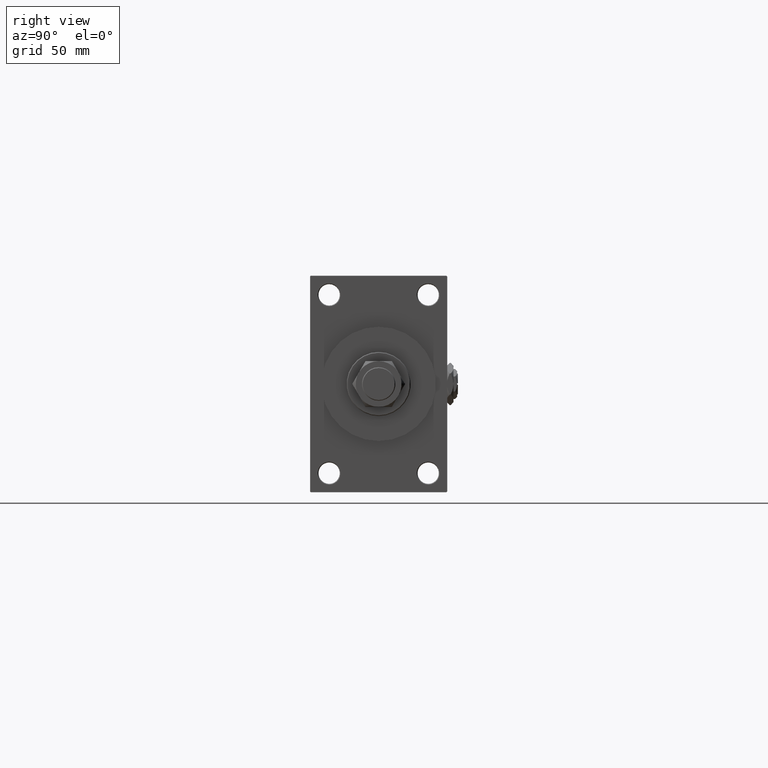
[diagram: clean part render]
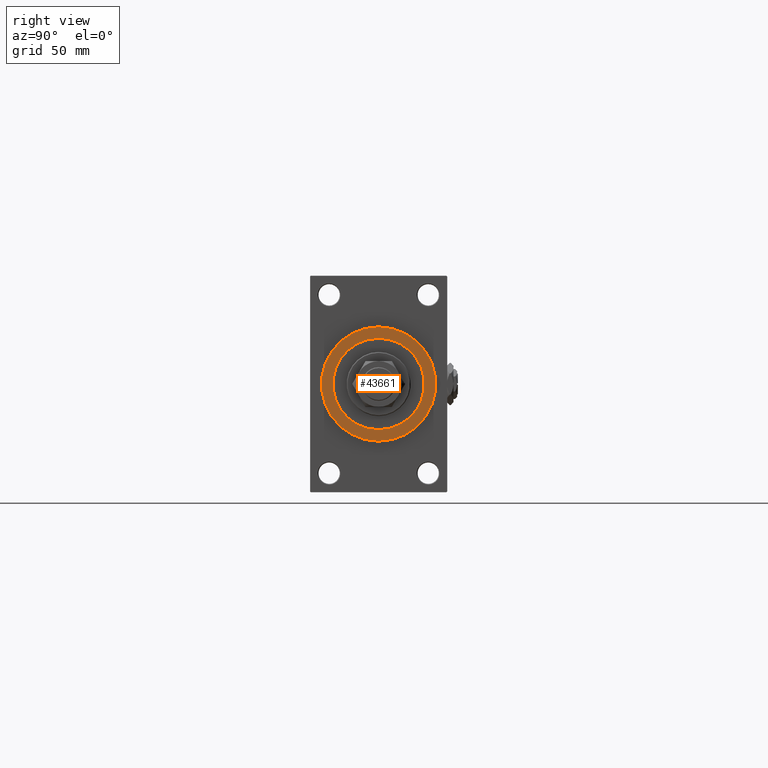
[diagram: same view with one face highlighted and labeled with its STEP entity id]
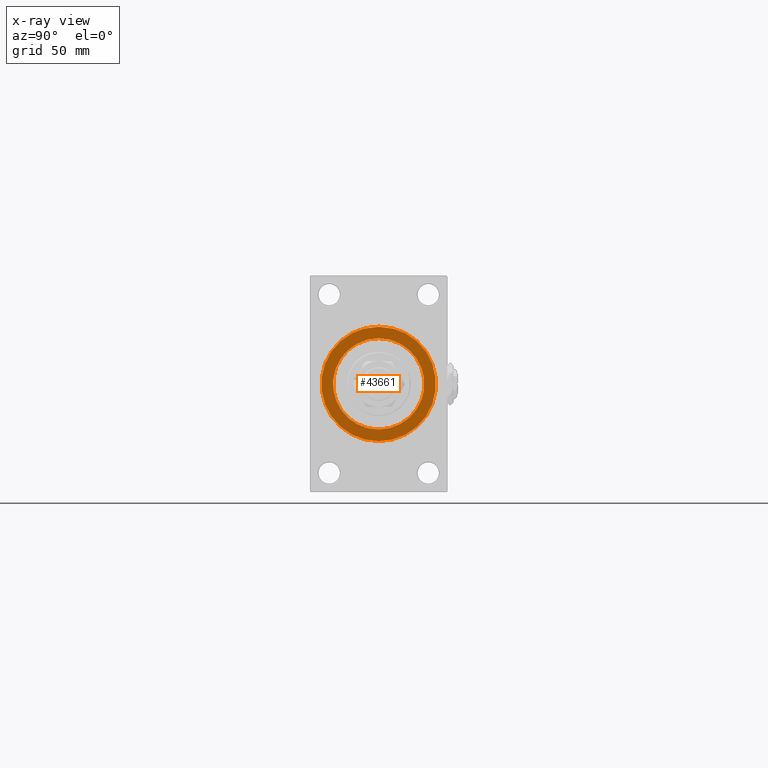
[diagram: x-ray of the same camera — body ghosted, the highlighted face saturated]
A machine part, right view. The second image highlights one B-rep face of the part: STEP entity #43661.
The next image is the same camera in x-ray: the body ghosted, the highlighted face saturated — about 0% of this face is hidden behind the body in this view.
In plain terms, the highlighted planar face has unit normal (1, 0, 0).
Its self-contained STEP definition (entity closure, byte-faithful):
#370 = ORIENTED_EDGE ( 'NONE', *, *, #31422, .F. ) ;
#428 = CARTESIAN_POINT ( 'NONE',  ( 356.0000000000000000, 0.000000000000000000, 0.000000000000000000 ) ) ;
#904 = DIRECTION ( 'NONE',  ( 1.000000000000000000, 0.000000000000000000, 0.000000000000000000 ) ) ;
#3943 = DIRECTION ( 'NONE',  ( 1.000000000000000000, 0.000000000000000000, 0.000000000000000000 ) ) ;
#5275 = DIRECTION ( 'NONE',  ( 0.000000000000000000, 0.000000000000000000, -1.000000000000000000 ) ) ;
#7744 = CARTESIAN_POINT ( 'NONE',  ( 356.0000000000000000, 4.592425496802575156E-15, -37.50000000000000711 ) ) ;
#7968 = AXIS2_PLACEMENT_3D ( 'NONE', #37849, #31139, #18790 ) ;
#8167 = VERTEX_POINT ( 'NONE', #47296 ) ;
#9370 = EDGE_CURVE ( 'NONE', #19144, #43525, #11946, .T. ) ;
#10799 = PLANE ( 'NONE',  #7968 ) ;
#11946 = CIRCLE ( 'NONE', #44872, 30.00000000000000000 ) ;
#15077 = EDGE_CURVE ( 'NONE', #8167, #46266, #19540, .T. ) ;
#15760 = DIRECTION ( 'NONE',  ( 1.000000000000000000, 0.000000000000000000, 0.000000000000000000 ) ) ;
#16661 = EDGE_CURVE ( 'NONE', #46266, #8167, #43462, .T. ) ;
#17163 = CARTESIAN_POINT ( 'NONE',  ( 356.0000000000000000, 0.000000000000000000, 0.000000000000000000 ) ) ;
#18790 = DIRECTION ( 'NONE',  ( 0.000000000000000000, 0.000000000000000000, -1.000000000000000000 ) ) ;
#19144 = VERTEX_POINT ( 'NONE', #36343 ) ;
#19540 = CIRCLE ( 'NONE', #26110, 37.50000000000000711 ) ;
#20030 = DIRECTION ( 'NONE',  ( 1.000000000000000000, 0.000000000000000000, 0.000000000000000000 ) ) ;
#21258 = AXIS2_PLACEMENT_3D ( 'NONE', #30763, #3943, #23538 ) ;
#23538 = DIRECTION ( 'NONE',  ( 0.000000000000000000, 0.000000000000000000, -1.000000000000000000 ) ) ;
#24943 = AXIS2_PLACEMENT_3D ( 'NONE', #35343, #15760, #44080 ) ;
#26110 = AXIS2_PLACEMENT_3D ( 'NONE', #428, #20030, #34978 ) ;
#30130 = FACE_OUTER_BOUND ( 'NONE', #44233, .T. ) ;
#30629 = FACE_BOUND ( 'NONE', #42137, .T. ) ;
#30763 = CARTESIAN_POINT ( 'NONE',  ( 356.0000000000000000, 0.000000000000000000, 0.000000000000000000 ) ) ;
#31139 = DIRECTION ( 'NONE',  ( 1.000000000000000000, 0.000000000000000000, 0.000000000000000000 ) ) ;
#31422 = EDGE_CURVE ( 'NONE', #43525, #19144, #39725, .T. ) ;
#31606 = ORIENTED_EDGE ( 'NONE', *, *, #16661, .T. ) ;
#34978 = DIRECTION ( 'NONE',  ( 0.000000000000000000, 0.000000000000000000, -1.000000000000000000 ) ) ;
#35343 = CARTESIAN_POINT ( 'NONE',  ( 356.0000000000000000, 0.000000000000000000, 0.000000000000000000 ) ) ;
#36257 = ORIENTED_EDGE ( 'NONE', *, *, #9370, .F. ) ;
#36343 = CARTESIAN_POINT ( 'NONE',  ( 356.0000000000000000, 0.000000000000000000, -30.00000000000000000 ) ) ;
#37849 = CARTESIAN_POINT ( 'NONE',  ( 356.0000000000000000, 0.000000000000000000, 0.000000000000000000 ) ) ;
#39725 = CIRCLE ( 'NONE', #24943, 30.00000000000000000 ) ;
#40435 = CARTESIAN_POINT ( 'NONE',  ( 356.0000000000000000, 3.673940397442059178E-15, 30.00000000000000000 ) ) ;
#42137 = EDGE_LOOP ( 'NONE', ( #36257, #370 ) ) ;
#43462 = CIRCLE ( 'NONE', #21258, 37.50000000000000711 ) ;
#43525 = VERTEX_POINT ( 'NONE', #40435 ) ;
#43661 = ADVANCED_FACE ( 'NONE', ( #30629, #30130 ), #10799, .T. ) ;
#44080 = DIRECTION ( 'NONE',  ( 0.000000000000000000, 0.000000000000000000, -1.000000000000000000 ) ) ;
#44233 = EDGE_LOOP ( 'NONE', ( #44487, #31606 ) ) ;
#44487 = ORIENTED_EDGE ( 'NONE', *, *, #15077, .T. ) ;
#44872 = AXIS2_PLACEMENT_3D ( 'NONE', #17163, #904, #5275 ) ;
#46266 = VERTEX_POINT ( 'NONE', #7744 ) ;
#47296 = CARTESIAN_POINT ( 'NONE',  ( 356.0000000000000000, 0.000000000000000000, 37.50000000000000711 ) ) ;